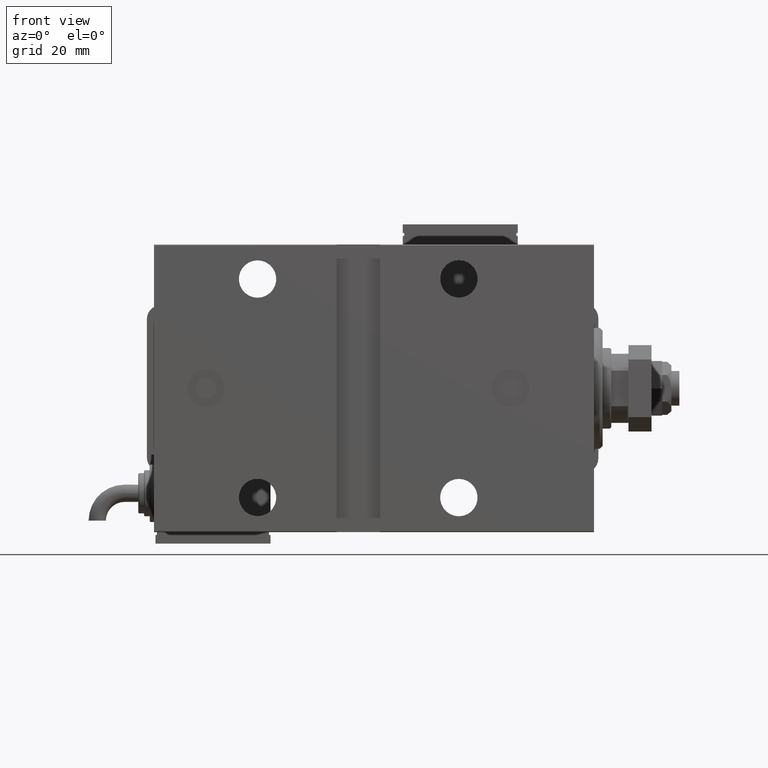
[diagram: clean part render]
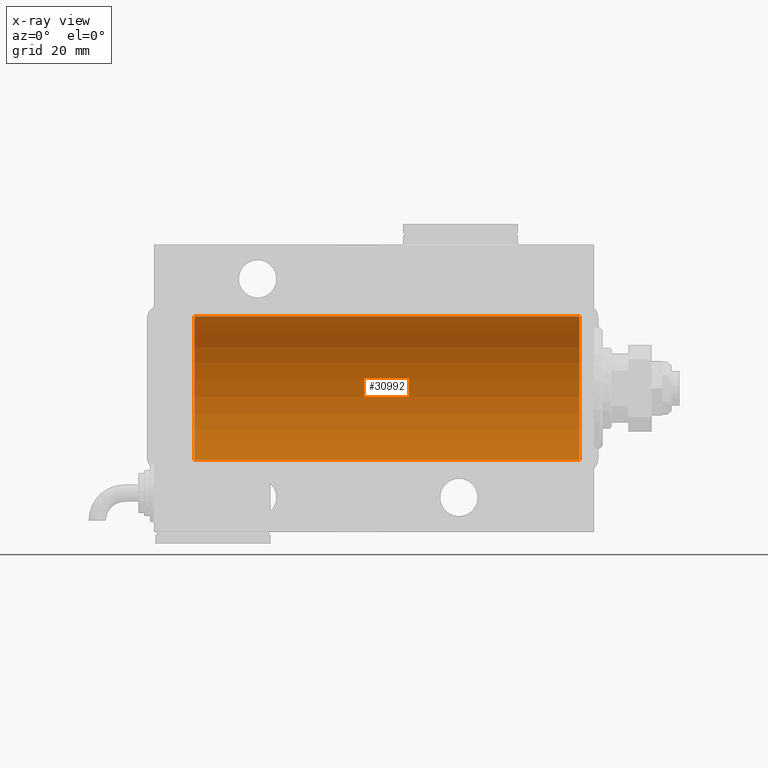
[diagram: x-ray — body ghosted, one internal face saturated and labeled with its STEP entity id]
A machine part, front view, then the same camera in x-ray: the body is ghosted and one INTERNAL B-rep face — a face not visible from any outside direction — is saturated and labeled: STEP entity #30992.
In plain terms, the highlighted cylindrical surface (partial cylindrical patch) has radius 25 mm, axis along (1, 0, -0).
Its self-contained STEP definition (entity closure, byte-faithful):
#586 = VECTOR ( 'NONE', #38679, 1000.000000000000000 ) ;
#1883 = CARTESIAN_POINT ( 'NONE',  ( 139.0000000000000000, 0.000000000000000000, 25.00000000000000000 ) ) ;
#2461 = LINE ( 'NONE', #29211, #586 ) ;
#4513 = CIRCLE ( 'NONE', #8294, 25.00000000000000000 ) ;
#5846 = DIRECTION ( 'NONE',  ( 0.000000000000000000, 0.000000000000000000, 1.000000000000000000 ) ) ;
#6798 = ORIENTED_EDGE ( 'NONE', *, *, #32748, .F. ) ;
#8229 = CARTESIAN_POINT ( 'NONE',  ( 5.000000000000004441, 3.061616997868383043E-15, -25.00000000000000000 ) ) ;
#8294 = AXIS2_PLACEMENT_3D ( 'NONE', #43916, #24689, #21388 ) ;
#10309 = CARTESIAN_POINT ( 'NONE',  ( 5.000000000000004441, 0.000000000000000000, 0.000000000000000000 ) ) ;
#14274 = DIRECTION ( 'NONE',  ( 0.000000000000000000, 0.000000000000000000, 1.000000000000000000 ) ) ;
#20559 = DIRECTION ( 'NONE',  ( -1.000000000000000000, -0.000000000000000000, -0.000000000000000000 ) ) ;
#21388 = DIRECTION ( 'NONE',  ( 0.000000000000000000, 0.000000000000000000, 1.000000000000000000 ) ) ;
#23063 = AXIS2_PLACEMENT_3D ( 'NONE', #54611, #37718, #14274 ) ;
#23920 = AXIS2_PLACEMENT_3D ( 'NONE', #10309, #29029, #5846 ) ;
#24689 = DIRECTION ( 'NONE',  ( -1.000000000000000000, 0.000000000000000000, 0.000000000000000000 ) ) ;
#25040 = LINE ( 'NONE', #1883, #37333 ) ;
#27646 = ORIENTED_EDGE ( 'NONE', *, *, #45912, .F. ) ;
#29029 = DIRECTION ( 'NONE',  ( -1.000000000000000000, 0.000000000000000000, 0.000000000000000000 ) ) ;
#29211 = CARTESIAN_POINT ( 'NONE',  ( 139.0000000000000000, 3.061616997868383043E-15, -25.00000000000000000 ) ) ;
#30287 = CARTESIAN_POINT ( 'NONE',  ( 139.0000000000000000, 3.061616997868383043E-15, -25.00000000000000000 ) ) ;
#30453 = VERTEX_POINT ( 'NONE', #43804 ) ;
#30992 = ADVANCED_FACE ( 'NONE', ( #36549 ), #55478, .F. ) ;
#32748 = EDGE_CURVE ( 'NONE', #30453, #54937, #25040, .T. ) ;
#36121 = ORIENTED_EDGE ( 'NONE', *, *, #50679, .T. ) ;
#36549 = FACE_OUTER_BOUND ( 'NONE', #37105, .T. ) ;
#37105 = EDGE_LOOP ( 'NONE', ( #27646, #55351, #36121, #6798 ) ) ;
#37333 = VECTOR ( 'NONE', #20559, 1000.000000000000000 ) ;
#37718 = DIRECTION ( 'NONE',  ( -1.000000000000000000, -0.000000000000000000, -0.000000000000000000 ) ) ;
#38192 = VERTEX_POINT ( 'NONE', #8229 ) ;
#38679 = DIRECTION ( 'NONE',  ( -1.000000000000000000, -0.000000000000000000, -0.000000000000000000 ) ) ;
#41307 = VERTEX_POINT ( 'NONE', #30287 ) ;
#42886 = EDGE_CURVE ( 'NONE', #41307, #38192, #2461, .T. ) ;
#43804 = CARTESIAN_POINT ( 'NONE',  ( 139.0000000000000000, 0.000000000000000000, 25.00000000000000000 ) ) ;
#43916 = CARTESIAN_POINT ( 'NONE',  ( 139.0000000000000000, 0.000000000000000000, 0.000000000000000000 ) ) ;
#44368 = CARTESIAN_POINT ( 'NONE',  ( 5.000000000000004441, 0.000000000000000000, 25.00000000000000000 ) ) ;
#45912 = EDGE_CURVE ( 'NONE', #41307, #30453, #4513, .T. ) ;
#50679 = EDGE_CURVE ( 'NONE', #38192, #54937, #57963, .T. ) ;
#54611 = CARTESIAN_POINT ( 'NONE',  ( 139.0000000000000000, 0.000000000000000000, 0.000000000000000000 ) ) ;
#54937 = VERTEX_POINT ( 'NONE', #44368 ) ;
#55351 = ORIENTED_EDGE ( 'NONE', *, *, #42886, .T. ) ;
#55478 = CYLINDRICAL_SURFACE ( 'NONE', #23063, 25.00000000000000000 ) ;
#57963 = CIRCLE ( 'NONE', #23920, 25.00000000000000000 ) ;